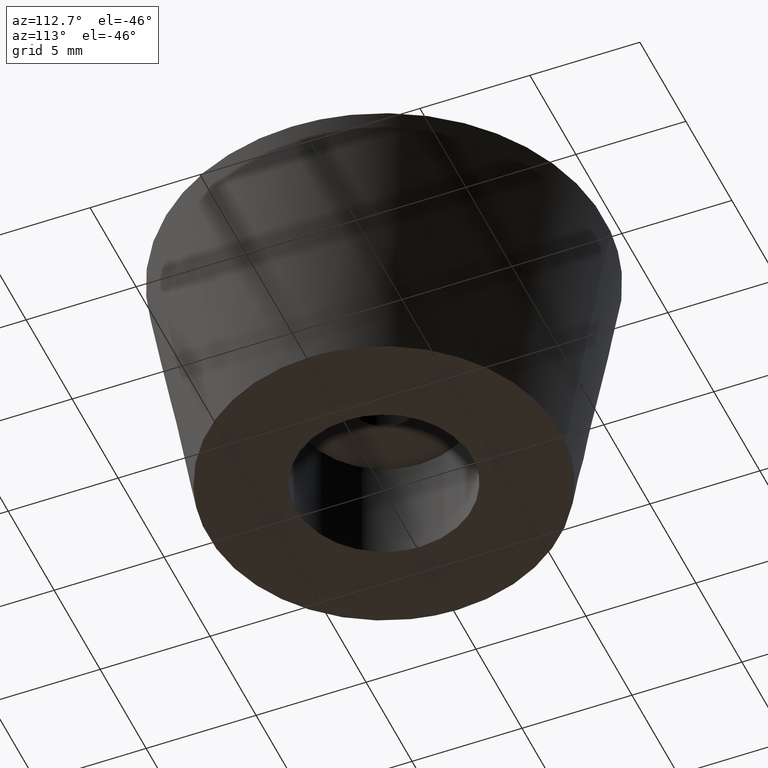
[diagram: clean part render]
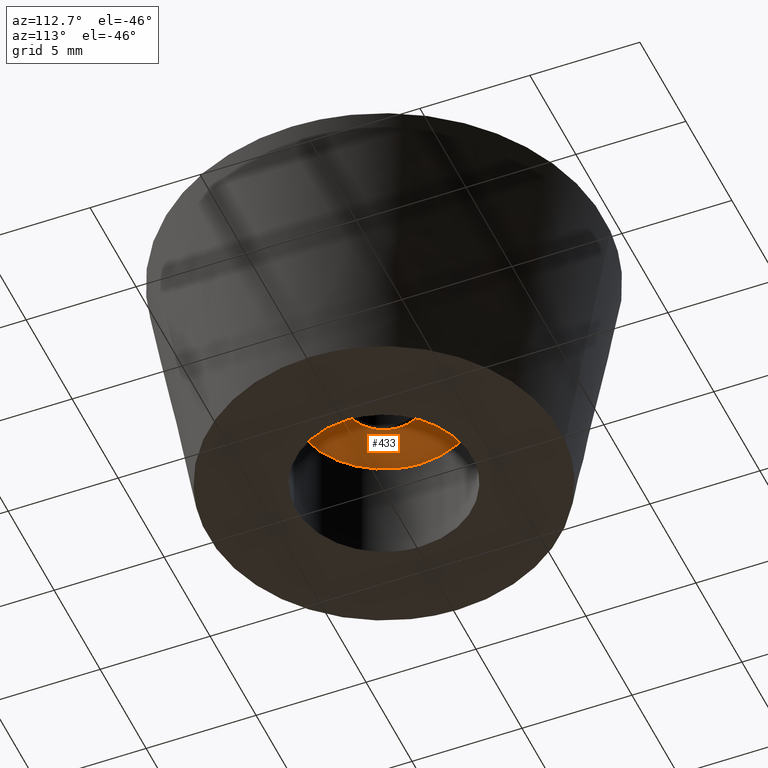
[diagram: same view with one face highlighted and labeled with its STEP entity id]
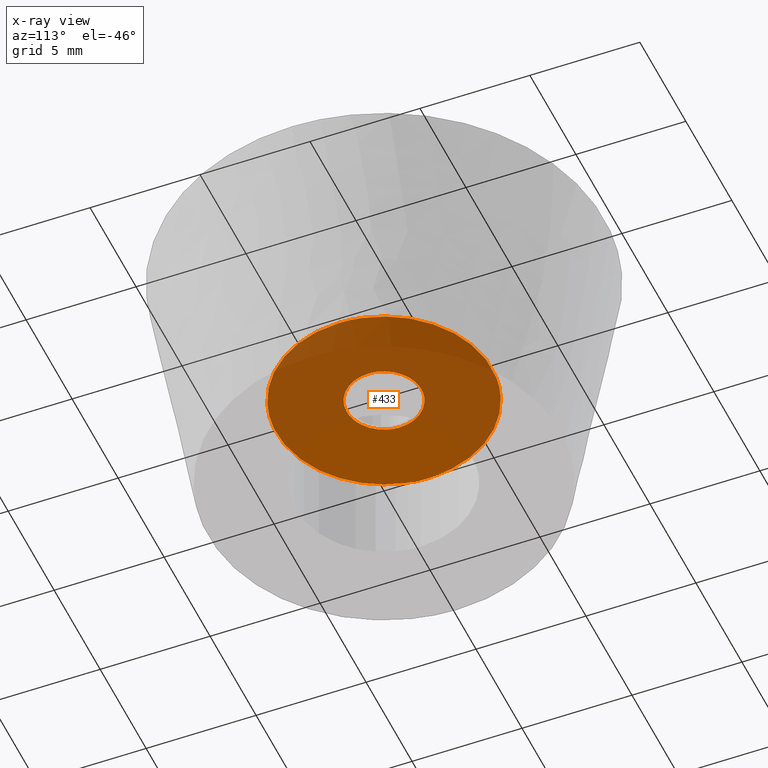
[diagram: x-ray of the same camera — body ghosted, the highlighted face saturated]
A machine part, auxiliary view. The second image highlights one B-rep face of the part: STEP entity #433.
The next image is the same camera in x-ray: the body ghosted, the highlighted face saturated — about 71% of this face is hidden behind the body in this view.
In plain terms, the highlighted face is a freeform B-spline surface patch.
Its self-contained STEP definition (entity closure, byte-faithful):
#66=CARTESIAN_POINT('',(-0.200658198924870,1.688116194817237,5.0));
#67=VERTEX_POINT('',#66);
#68=CARTESIAN_POINT('',(1.700000000000000,0.0,5.0));
#69=VERTEX_POINT('',#68);
#70=CARTESIAN_POINT('',(-0.200658198924870,1.688116194817237,5.0));
#71=CARTESIAN_POINT('',(-0.100681003416716,1.700000000000000,5.000000000000001));
#72=CARTESIAN_POINT('',(0.0,1.700000000000000,5.0));
#73=CARTESIAN_POINT('',(1.700000000000000,1.700000000000000,5.000000000000001));
#74=CARTESIAN_POINT('',(1.700000000000000,0.0,5.0));
#82=(BOUNDED_CURVE()B_SPLINE_CURVE(2,(#70,#71,#72,#73,#74),.UNSPECIFIED.,.F.,.U.)B_SPLINE_CURVE_WITH_KNOTS((3,2,3),(0.229562473513966,0.250000000000000,0.500000000000000),.UNSPECIFIED.)CURVE()GEOMETRIC_REPRESENTATION_ITEM()RATIONAL_B_SPLINE_CURVE((0.956026754184597,0.976055948331682,1.0,0.707106781186548,1.0))REPRESENTATION_ITEM(''));
#83=EDGE_CURVE('',#67,#69,#82,.T.);
#85=CARTESIAN_POINT('',(0.103782517240614,-1.696829157315256,5.0));
#86=VERTEX_POINT('',#85);
#87=CARTESIAN_POINT('',(1.700000000000000,0.0,5.0));
#88=CARTESIAN_POINT('',(1.700000000000001,-1.599200313680455,5.0));
#89=CARTESIAN_POINT('',(0.103782517240614,-1.696829157315256,5.0));
#97=(BOUNDED_CURVE()B_SPLINE_CURVE(2,(#87,#88,#89),.UNSPECIFIED.,.F.,.U.)B_SPLINE_CURVE_WITH_KNOTS((3,3),(0.500000000000000,0.739332962235590),.UNSPECIFIED.)CURVE()GEOMETRIC_REPRESENTATION_ITEM()RATIONAL_B_SPLINE_CURVE((1.0,0.719603993290638,0.976072041659532))REPRESENTATION_ITEM(''));
#98=EDGE_CURVE('',#69,#86,#97,.T.);
#165=CARTESIAN_POINT('',(-1.700000000000000,0.0,5.0));
#166=VERTEX_POINT('',#165);
#167=CARTESIAN_POINT('',(-1.700000000000000,0.0,5.0));
#168=CARTESIAN_POINT('',(-1.700000000000000,1.509896694102229,4.999999999999999));
#169=CARTESIAN_POINT('',(-0.200658198924870,1.688116194817237,5.0));
#177=(BOUNDED_CURVE()B_SPLINE_CURVE(2,(#167,#168,#169),.UNSPECIFIED.,.F.,.U.)B_SPLINE_CURVE_WITH_KNOTS((3,3),(0.0,0.229562473513966),.UNSPECIFIED.)CURVE()GEOMETRIC_REPRESENTATION_ITEM()RATIONAL_B_SPLINE_CURVE((1.0,0.731050832854866,0.956026754184597))REPRESENTATION_ITEM(''));
#178=EDGE_CURVE('',#166,#67,#177,.T.);
#212=CARTESIAN_POINT('',(0.103782517240614,-1.696829157315255,5.0));
#213=CARTESIAN_POINT('',(0.051939697639046,-1.700000000000000,4.999999999999999));
#214=CARTESIAN_POINT('',(0.0,-1.700000000000000,5.0));
#215=CARTESIAN_POINT('',(-1.700000000000000,-1.700000000000000,5.000000000000001));
#216=CARTESIAN_POINT('',(-1.700000000000000,0.0,5.0));
#224=(BOUNDED_CURVE()B_SPLINE_CURVE(2,(#212,#213,#214,#215,#216),.UNSPECIFIED.,.F.,.U.)B_SPLINE_CURVE_WITH_KNOTS((3,2,3),(0.739332962235591,0.750000000000000,1.0),.UNSPECIFIED.)CURVE()GEOMETRIC_REPRESENTATION_ITEM()RATIONAL_B_SPLINE_CURVE((0.976072041659534,0.987502787895910,1.0,0.707106781186548,1.0))REPRESENTATION_ITEM(''));
#225=EDGE_CURVE('',#86,#166,#224,.T.);
#252=CARTESIAN_POINT('',(-0.578366192576430,4.865746864283239,5.000000000000030));
#253=VERTEX_POINT('',#252);
#254=CARTESIAN_POINT('',(4.900000000000000,0.0,5.0));
#255=VERTEX_POINT('',#254);
#256=CARTESIAN_POINT('',(-0.578366192576430,4.865746864283239,5.000000000000030));
#257=CARTESIAN_POINT('',(-0.290197399442074,4.900000000000001,5.000000000000001));
#258=CARTESIAN_POINT('',(0.0,4.900000000000000,5.0));
#259=CARTESIAN_POINT('',(4.899999999999999,4.899999999999999,4.999999999999999));
#260=CARTESIAN_POINT('',(4.900000000000000,0.0,5.0));
#268=(BOUNDED_CURVE()B_SPLINE_CURVE(2,(#256,#257,#258,#259,#260),.UNSPECIFIED.,.F.,.U.)B_SPLINE_CURVE_WITH_KNOTS((3,2,3),(0.229562527603727,0.250000000000000,0.500000000000000),.UNSPECIFIED.)CURVE()GEOMETRIC_REPRESENTATION_ITEM()RATIONAL_B_SPLINE_CURVE((0.956026860202770,0.976056011701778,1.0,0.707106781186547,1.0))REPRESENTATION_ITEM(''));
#269=EDGE_CURVE('',#253,#255,#268,.T.);
#310=CARTESIAN_POINT('',(0.299134359802728,-4.890860725350214,4.999999999999892));
#311=VERTEX_POINT('',#310);
#317=CARTESIAN_POINT('',(4.900000000000000,0.0,5.0));
#318=CARTESIAN_POINT('',(4.900000000000000,-4.609463017441829,5.000000000000001));
#319=CARTESIAN_POINT('',(0.299134359802728,-4.890860725350214,4.999999999999892));
#327=(BOUNDED_CURVE()B_SPLINE_CURVE(2,(#317,#318,#319),.UNSPECIFIED.,.F.,.U.)B_SPLINE_CURVE_WITH_KNOTS((3,3),(0.500000000000000,0.739333085152637),.UNSPECIFIED.)CURVE()GEOMETRIC_REPRESENTATION_ITEM()RATIONAL_B_SPLINE_CURVE((1.0,0.719603849284361,0.976072305094303))REPRESENTATION_ITEM(''));
#328=EDGE_CURVE('',#255,#311,#327,.T.);
#351=CARTESIAN_POINT('',(-4.900000000000000,0.0,5.0));
#352=VERTEX_POINT('',#351);
#353=CARTESIAN_POINT('',(-4.900000000000000,0.0,5.0));
#354=CARTESIAN_POINT('',(-4.900000000000000,4.352056579805993,5.0));
#355=CARTESIAN_POINT('',(-0.578366192576430,4.865746864283239,5.000000000000030));
#363=(BOUNDED_CURVE()B_SPLINE_CURVE(2,(#353,#354,#355),.UNSPECIFIED.,.F.,.U.)B_SPLINE_CURVE_WITH_KNOTS((3,3),(0.0,0.229562527603727),.UNSPECIFIED.)CURVE()GEOMETRIC_REPRESENTATION_ITEM()RATIONAL_B_SPLINE_CURVE((1.0,0.731050769484769,0.956026860202770))REPRESENTATION_ITEM(''));
#364=EDGE_CURVE('',#352,#253,#363,.T.);
#366=CARTESIAN_POINT('',(0.299134359802728,-4.890860725350214,4.999999999999892));
#367=CARTESIAN_POINT('',(0.149706793319862,-4.900000000000000,5.0));
#368=CARTESIAN_POINT('',(0.0,-4.900000000000000,5.0));
#369=CARTESIAN_POINT('',(-4.899999999999999,-4.899999999999999,4.999999999999999));
#370=CARTESIAN_POINT('',(-4.900000000000000,0.0,5.0));
#378=(BOUNDED_CURVE()B_SPLINE_CURVE(2,(#366,#367,#368,#369,#370),.UNSPECIFIED.,.F.,.U.)B_SPLINE_CURVE_WITH_KNOTS((3,2,3),(0.739333085152637,0.750000000000000,1.0),.UNSPECIFIED.)CURVE()GEOMETRIC_REPRESENTATION_ITEM()RATIONAL_B_SPLINE_CURVE((0.976072305094303,0.987502931902187,1.0,0.707106781186547,1.0))REPRESENTATION_ITEM(''));
#379=EDGE_CURVE('',#311,#352,#378,.T.);
#416=CARTESIAN_POINT('',(-5.389510073001086,-5.389390995347227,5.0));
#417=CARTESIAN_POINT('',(5.389510248238743,-5.389390995347227,5.0));
#418=CARTESIAN_POINT('',(-5.389510073001086,5.389420873367515,5.0));
#419=CARTESIAN_POINT('',(5.389510248238743,5.389420873367515,5.0));
#420=B_SPLINE_SURFACE_WITH_KNOTS('',1,1,((#416,#418),(#417,#419)),.UNSPECIFIED.,.F.,.F.,.U.,(2,2),(2,2),(0.0,10.779020321239830),(0.0,10.778811868714740),.UNSPECIFIED.);
#421=ORIENTED_EDGE('',*,*,#364,.T.);
#422=ORIENTED_EDGE('',*,*,#269,.T.);
#423=ORIENTED_EDGE('',*,*,#328,.T.);
#424=ORIENTED_EDGE('',*,*,#379,.T.);
#425=EDGE_LOOP('',(#421,#422,#423,#424));
#426=FACE_OUTER_BOUND('',#425,.T.);
#427=ORIENTED_EDGE('',*,*,#98,.F.);
#428=ORIENTED_EDGE('',*,*,#83,.F.);
#429=ORIENTED_EDGE('',*,*,#178,.F.);
#430=ORIENTED_EDGE('',*,*,#225,.F.);
#431=EDGE_LOOP('',(#427,#428,#429,#430));
#432=FACE_BOUND('',#431,.T.);
#433=ADVANCED_FACE('',(#426,#432),#420,.F.);